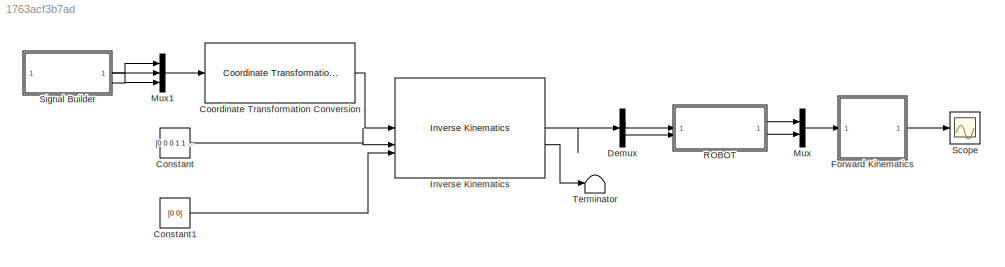
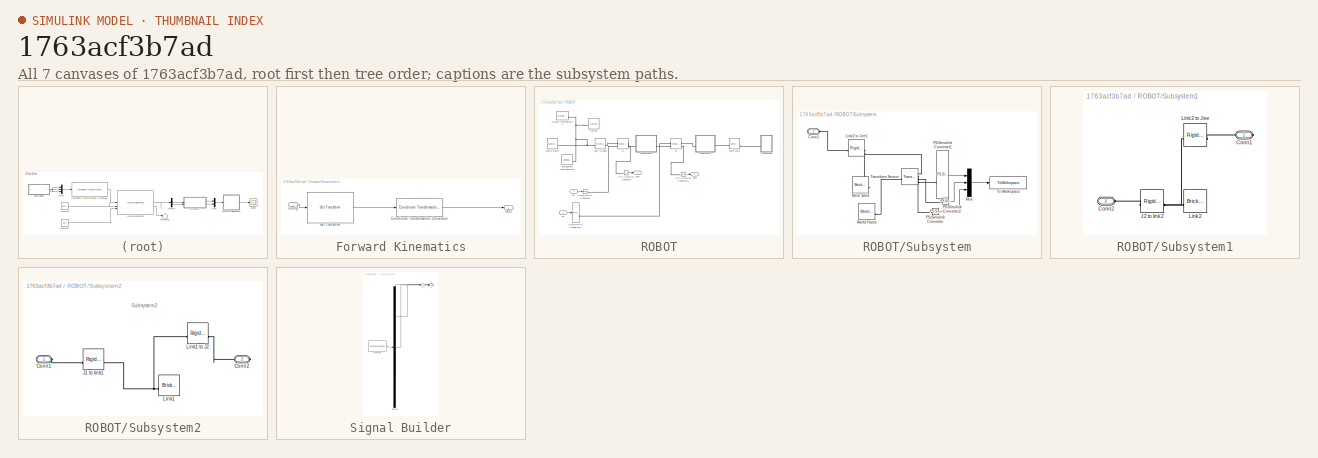
[diagram: thumbnail index - all 7 canvases of the model, root first then tree order]
MODEL slx_1763acf3b7ad
KIND model
CONFIG AbsTol = auto
CONFIG EnableMultiTasking = off
CONFIG FixedStep = auto
CONFIG MaxStep = auto
CONFIG MinStep = auto
CONFIG RelTol = 1e-3
CONFIG SampleTimeConstraint = Unconstrained
CONFIG SolverName = VariableStepAuto
CONFIG StartTime = 0.0
CONFIG StopTime = 6.3
BLOCK [Constant] Constant
  Value = [0 0 0 1 1 1]
BLOCK [Constant] Constant1
  Value = [0 0]
BLOCK [Reference] Coordinate Transformation Conversion  REF=robotcorelib/Coordinate Transformation Conversion
  LibrarySourceBlock = robotutilslib/Coordinate Transformation Conversion
  SourceBlock = robotcorelib/Coordinate Transformation Conversion
  SourceType = robotics.slcore.internal.block.CoordinateTransformationConversion
BLOCK [Demux] Demux
  Outputs = 2
BLOCK [SubSystem] Forward Kinematics
BLOCK [Inport] Forward Kinematics/Config
BLOCK [Reference] Forward Kinematics/Coordinate Transformation Conversion  REF=robotcorelib/Coordinate Transformation Conversion
  LibrarySourceBlock = robotutilslib/Coordinate Transformation Conversion
  SourceBlock = robotcorelib/Coordinate Transformation Conversion
  SourceType = robotics.slcore.internal.block.CoordinateTransformationConversion
BLOCK [Reference] Forward Kinematics/Get Transform  REF=robotmaniplib/Get Transform
  SourceBlock = robotmaniplib/Get Transform
  SourceType = Get Transform
BLOCK [Outport] Forward Kinematics/Out1
BLOCK [Reference] Inverse Kinematics  REF=robotmaniplib/Inverse Kinematics
  SourceBlock = robotmaniplib/Inverse Kinematics
  SourceType = Inverse Kinematics
BLOCK [Mux] Mux
  DisplayOption = bar
  Inputs = 2
BLOCK [Mux] Mux1
  DisplayOption = bar
  Inputs = 3
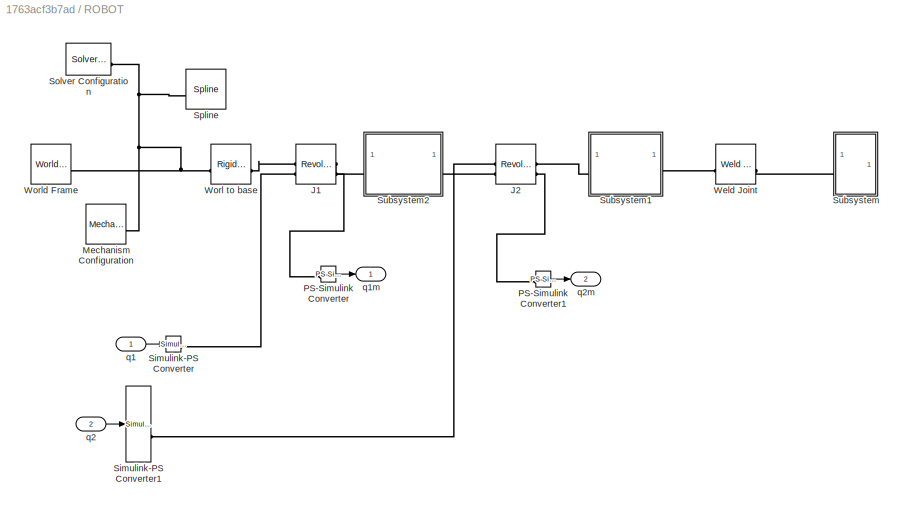
BLOCK [SubSystem] ROBOT
BLOCK [Reference] ROBOT/J1  REF=sm_lib/Joints/Revolute Joint
  SourceBlock = sm_lib/Joints/Revolute Joint
  SourceType = Revolute Joint
BLOCK [Reference] ROBOT/J2  REF=sm_lib/Joints/Revolute Joint
  SourceBlock = sm_lib/Joints/Revolute Joint
  SourceType = Revolute Joint
BLOCK [Reference] ROBOT/Mechanism Configuration  REF=sm_lib/Utilities/Mechanism
Configuration
  SourceBlock = sm_lib/Utilities/Mechanism\nConfiguration
  SourceType = Mechanism\nConfiguration
BLOCK [Reference] ROBOT/PS-Simulink Converter  REF=nesl_utility/PS-Simulink
Converter
  SourceBlock = nesl_utility/PS-Simulink\nConverter
  SourceType = PS-Simulink\nConverter
BLOCK [Reference] ROBOT/PS-Simulink Converter1  REF=nesl_utility/PS-Simulink
Converter
  SourceBlock = nesl_utility/PS-Simulink\nConverter
  SourceType = PS-Simulink\nConverter
BLOCK [Reference] ROBOT/Simulink-PS Converter  REF=nesl_utility/Simulink-PS
Converter
  SourceBlock = nesl_utility/Simulink-PS\nConverter
  SourceType = Simulink-PS\nConverter
BLOCK [Reference] ROBOT/Simulink-PS Converter1  REF=nesl_utility/Simulink-PS
Converter
  SourceBlock = nesl_utility/Simulink-PS\nConverter
  SourceType = Simulink-PS\nConverter
BLOCK [Reference] ROBOT/Solver Configuration  REF=nesl_utility/Solver
Configuration
  SourceBlock = nesl_utility/Solver\nConfiguration
  SourceType = Solver\nConfiguration
BLOCK [Reference] ROBOT/Spline  REF=sm_lib/Curves and Surfaces/Spline
  SourceBlock = sm_lib/Curves and Surfaces/Spline
  SourceType = Spline
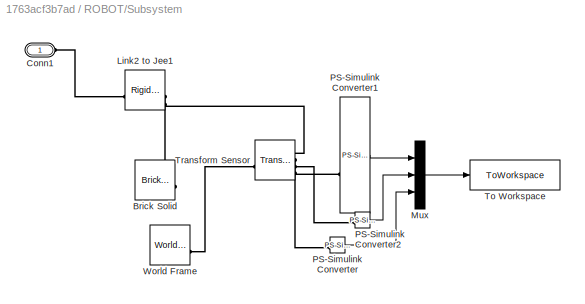
BLOCK [SubSystem] ROBOT/Subsystem
BLOCK [Reference] ROBOT/Subsystem/ Link2 to Jee1  REF=sm_lib/Frames and
Transforms/Rigid
Transform
  SourceBlock = sm_lib/Frames and\nTransforms/Rigid\nTransform
  SourceType = Rigid\nTransform
BLOCK [Reference] ROBOT/Subsystem/Brick Solid  REF=sm_lib/Body Elements/Brick Solid
  SourceBlock = sm_lib/Body Elements/Brick Solid
  SourceType = Brick Solid
BLOCK [PMIOPort] ROBOT/Subsystem/Conn1
  Side = Left
BLOCK [Mux] ROBOT/Subsystem/Mux
  DisplayOption = bar
  Inputs = 3
BLOCK [Reference] ROBOT/Subsystem/PS-Simulink Converter  REF=nesl_utility/PS-Simulink
Converter
  SourceBlock = nesl_utility/PS-Simulink\nConverter
  SourceType = PS-Simulink\nConverter
BLOCK [Reference] ROBOT/Subsystem/PS-Simulink Converter1  REF=nesl_utility/PS-Simulink
Converter
  SourceBlock = nesl_utility/PS-Simulink\nConverter
  SourceType = PS-Simulink\nConverter
BLOCK [Reference] ROBOT/Subsystem/PS-Simulink Converter2  REF=nesl_utility/PS-Simulink
Converter
  SourceBlock = nesl_utility/PS-Simulink\nConverter
  SourceType = PS-Simulink\nConverter
BLOCK [ToWorkspace] ROBOT/Subsystem/To Workspace
  FixptAsFi = on
  MaxDataPoints = inf
  SampleTime = -1
  SaveFormat = Structure With Time
  VariableName = Trayectoria
BLOCK [Reference] ROBOT/Subsystem/Transform Sensor  REF=sm_lib/Frames and
Transforms/Transform
Sensor
  SourceBlock = sm_lib/Frames and\nTransforms/Transform\nSensor
  SourceType = Transform\nSensor
BLOCK [Reference] ROBOT/Subsystem/World Frame  REF=sm_lib/Frames and
Transforms/World Frame
  SourceBlock = sm_lib/Frames and\nTransforms/World Frame
  SourceType = World Frame
BLOCK [SubSystem] ROBOT/Subsystem1
BLOCK [Reference] ROBOT/Subsystem1/ Link2 to Jee  REF=sm_lib/Frames and
Transforms/Rigid
Transform
  SourceBlock = sm_lib/Frames and\nTransforms/Rigid\nTransform
  SourceType = Rigid\nTransform
BLOCK [PMIOPort] ROBOT/Subsystem1/Conn1
  Side = Right
BLOCK [PMIOPort] ROBOT/Subsystem1/Conn2
  Port = 2
  Side = Left
BLOCK [Reference] ROBOT/Subsystem1/J2 to link2  REF=sm_lib/Frames and
Transforms/Rigid
Transform
  SourceBlock = sm_lib/Frames and\nTransforms/Rigid\nTransform
  SourceType = Rigid\nTransform
BLOCK [Reference] ROBOT/Subsystem1/Link2  REF=sm_lib/Body Elements/Brick Solid
  NameLocation = top
  SourceBlock = sm_lib/Body Elements/Brick Solid
  SourceType = Brick Solid
BLOCK [SubSystem] ROBOT/Subsystem2
BLOCK [PMIOPort] ROBOT/Subsystem2/Conn1
  Side = Left
BLOCK [PMIOPort] ROBOT/Subsystem2/Conn2
  Port = 2
  Side = Right
BLOCK [Reference] ROBOT/Subsystem2/J1 to link1  REF=sm_lib/Frames and
Transforms/Rigid
Transform
  SourceBlock = sm_lib/Frames and\nTransforms/Rigid\nTransform
  SourceType = Rigid\nTransform
BLOCK [Reference] ROBOT/Subsystem2/Link1  REF=sm_lib/Body Elements/Brick Solid
  NameLocation = top
  SourceBlock = sm_lib/Body Elements/Brick Solid
  SourceType = Brick Solid
BLOCK [Reference] ROBOT/Subsystem2/Link1 to J2  REF=sm_lib/Frames and
Transforms/Rigid
Transform
  SourceBlock = sm_lib/Frames and\nTransforms/Rigid\nTransform
  SourceType = Rigid\nTransform
BLOCK [Reference] ROBOT/Weld Joint  REF=sm_lib/Joints/Weld Joint
  SourceBlock = sm_lib/Joints/Weld Joint
  SourceType = Weld Joint
BLOCK [Reference] ROBOT/Worl to base  REF=sm_lib/Frames and
Transforms/Rigid
Transform
  SourceBlock = sm_lib/Frames and\nTransforms/Rigid\nTransform
  SourceType = Rigid\nTransform
BLOCK [Reference] ROBOT/World Frame  REF=sm_lib/Frames and
Transforms/World Frame
  SourceBlock = sm_lib/Frames and\nTransforms/World Frame
  SourceType = World Frame
BLOCK [Inport] ROBOT/q1
BLOCK [Outport] ROBOT/q1m
BLOCK [Inport] ROBOT/q2
  Port = 2
BLOCK [Outport] ROBOT/q2m
  Port = 2
BLOCK [Scope] Scope
  Floating = off
  NumInputPorts = 1
  ScopeSpecificationString = Simulink.scopes.TimeScopeBlockCfg('CurrentConfiguration', extmgr.ConfigurationSet(extmgr.Configuration('Core','General UI',true),extmgr.Configuration('Core','Source UI',true),extmgr.Configuration('Sources','WiredSimulink',true),extmgr.Configuration('Visuals','Time Domain',true,'SerializedDisplays',{struct('MinYLimReal','-0.04759','MaxYLimReal','0.42831','YLabelReal','','MinYLimMag','0.00000','MaxY...<+1428ch>
BLOCK [SubSystem] Signal Builder
  ClipboardFcn = sigbuilder_block('clipboard');
  CloseFcn = sigbuilder_block('close');
  ContinueFcn = sigbuilder_block('continue');
  CopyFcn = sigbuilder_block('copy');
  DeleteFcn = sigbuilder_block('delete');
  LoadFcn = sigbuilder_block('load');
  MaskHideContents = on
  ModelCloseFcn = sigbuilder_block('modelClose');
  NameChangeFcn = sigbuilder_block('namechange');
  OpenFcn = sigbuilder_block('open',[404 117.5 550.5 362.5 ]);
  PauseFcn = sigbuilder_block('pause');
  PreSaveFcn = sigbuilder_block('preSave');
  StartFcn = sigbuilder_block('start');
  StopFcn = sigbuilder_block('stop');
  Tag = STV Subsys
BLOCK [Demux] Signal Builder/Demux
  DisplayOption = none
  Outputs = 3
  Tag = STV Demux
BLOCK [FromWorkspace] Signal Builder/FromWs
  Tag = STV FromWs
  VariableName = tuvar
BLOCK [Outport] Signal Builder/X
  Tag = STV Outport
BLOCK [Outport] Signal Builder/Y
  Port = 2
  Tag = STV Outport
BLOCK [Outport] Signal Builder/Z
  Port = 3
  Tag = STV Outport
BLOCK [Terminator] Terminator
ANNOTATION ROBOT/Subsystem2: Subsystem2
LINE Constant1:1 -> Inverse Kinematics:3
LINE Constant:1 -> Inverse Kinematics:2
LINE Coordinate Transformation Conversion:1 -> Inverse Kinematics:1
LINE Demux:1 -> ROBOT:1
LINE Demux:2 -> ROBOT:2
LINE Forward Kinematics/Config:1 -> Forward Kinematics/Get Transform:1
LINE Forward Kinematics/Coordinate Transformation Conversion:1 -> Forward Kinematics/Out1:1
LINE Forward Kinematics/Get Transform:1 -> Forward Kinematics/Coordinate Transformation Conversion:1
LINE Forward Kinematics:1 -> Scope:1
LINE Inverse Kinematics:1 -> Demux:1
LINE Inverse Kinematics:2 -> Terminator:1
LINE Mux1:1 -> Coordinate Transformation Conversion:1
LINE Mux:1 -> Forward Kinematics:1
LINE ROBOT/PS-Simulink Converter1:1 -> ROBOT/q2m:1
LINE ROBOT/PS-Simulink Converter:1 -> ROBOT/q1m:1
LINE ROBOT/Subsystem/Mux:1 -> ROBOT/Subsystem/To Workspace:1
LINE ROBOT/Subsystem/PS-Simulink Converter1:1 -> ROBOT/Subsystem/Mux:1
LINE ROBOT/Subsystem/PS-Simulink Converter2:1 -> ROBOT/Subsystem/Mux:2
LINE ROBOT/Subsystem/PS-Simulink Converter:1 -> ROBOT/Subsystem/Mux:3
LINE ROBOT/q1:1 -> ROBOT/Simulink-PS Converter:1
LINE ROBOT/q2:1 -> ROBOT/Simulink-PS Converter1:1
LINE ROBOT:1 -> Mux:1
LINE ROBOT:2 -> Mux:2
LINE Signal Builder:1 -> Mux1:1
LINE Signal Builder:2 -> Mux1:2
LINE Signal Builder:3 -> Mux1:3
PLINE ROBOT/J1:LConn1 -- ROBOT/Worl to base:RConn1
PLINE ROBOT/J1:LConn2 -- ROBOT/Simulink-PS Converter:RConn1
PLINE ROBOT/J1:RConn1 -- ROBOT/Subsystem2:LConn1
PLINE ROBOT/J1:RConn2 -- ROBOT/PS-Simulink Converter:LConn1
PLINE ROBOT/J2:LConn1 -- ROBOT/Subsystem2:RConn1
PLINE ROBOT/J2:LConn2 -- ROBOT/Simulink-PS Converter1:RConn1
PLINE ROBOT/J2:RConn1 -- ROBOT/Subsystem1:LConn1
PLINE ROBOT/J2:RConn2 -- ROBOT/PS-Simulink Converter1:LConn1
PNET net1: ROBOT/Mechanism Configuration:RConn1 -- ROBOT/Solver Configuration:RConn1 -- ROBOT/Spline:LConn1 -- ROBOT/Worl to base:LConn1 -- ROBOT/World Frame:RConn1
PLINE ROBOT/Subsystem/ Link2 to Jee1:LConn1 -- ROBOT/Subsystem/Conn1:RConn1
PNET net2: ROBOT/Subsystem/ Link2 to Jee1:RConn1 -- ROBOT/Subsystem/Brick Solid:RConn1 -- ROBOT/Subsystem/Transform Sensor:RConn1
PLINE ROBOT/Subsystem/PS-Simulink Converter1:LConn1 -- ROBOT/Subsystem/Transform Sensor:RConn2
PLINE ROBOT/Subsystem/PS-Simulink Converter2:LConn1 -- ROBOT/Subsystem/Transform Sensor:RConn3
PLINE ROBOT/Subsystem/PS-Simulink Converter:LConn1 -- ROBOT/Subsystem/Transform Sensor:RConn4
PLINE ROBOT/Subsystem/Transform Sensor:LConn1 -- ROBOT/Subsystem/World Frame:RConn1
PNET net3: ROBOT/Subsystem1/ Link2 to Jee:LConn1 -- ROBOT/Subsystem1/J2 to link2:RConn1 -- ROBOT/Subsystem1/Link2:RConn1
PLINE ROBOT/Subsystem1/ Link2 to Jee:RConn1 -- ROBOT/Subsystem1/Conn1:RConn1
PLINE ROBOT/Subsystem1/Conn2:RConn1 -- ROBOT/Subsystem1/J2 to link2:LConn1
PLINE ROBOT/Subsystem1:RConn1 -- ROBOT/Weld Joint:LConn1
PLINE ROBOT/Subsystem2/Conn1:RConn1 -- ROBOT/Subsystem2/J1 to link1:LConn1
PLINE ROBOT/Subsystem2/Conn2:RConn1 -- ROBOT/Subsystem2/Link1 to J2:RConn1
PNET net4: ROBOT/Subsystem2/J1 to link1:RConn1 -- ROBOT/Subsystem2/Link1 to J2:LConn1 -- ROBOT/Subsystem2/Link1:RConn1
PLINE ROBOT/Subsystem:LConn1 -- ROBOT/Weld Joint:RConn1
note: PNET lines group multi-terminal physical nets as a canonical sorted terminal list (undirected conserving connections); 2-terminal nets keep the pairwise PLINE form
